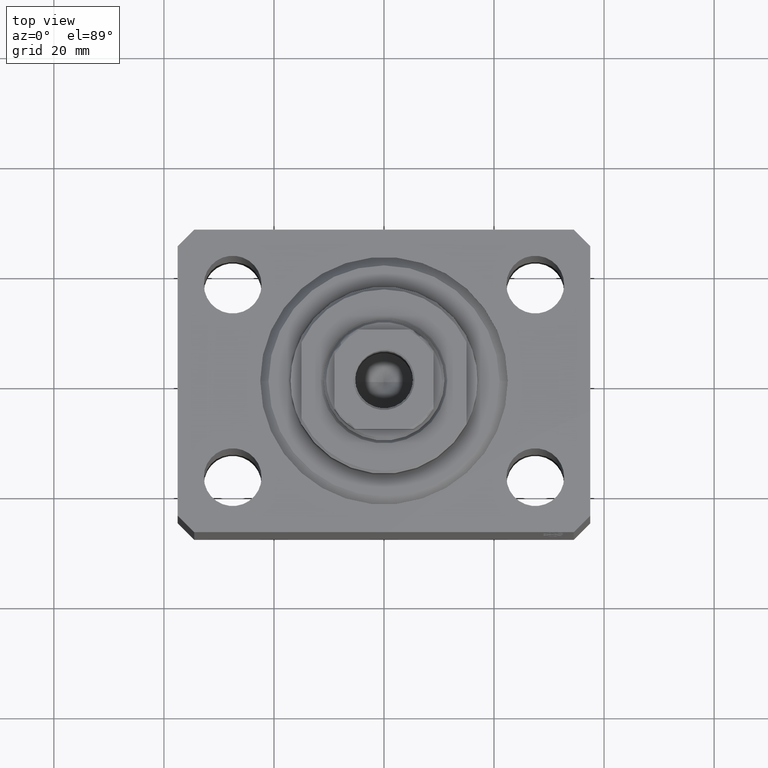
[diagram: clean part render]
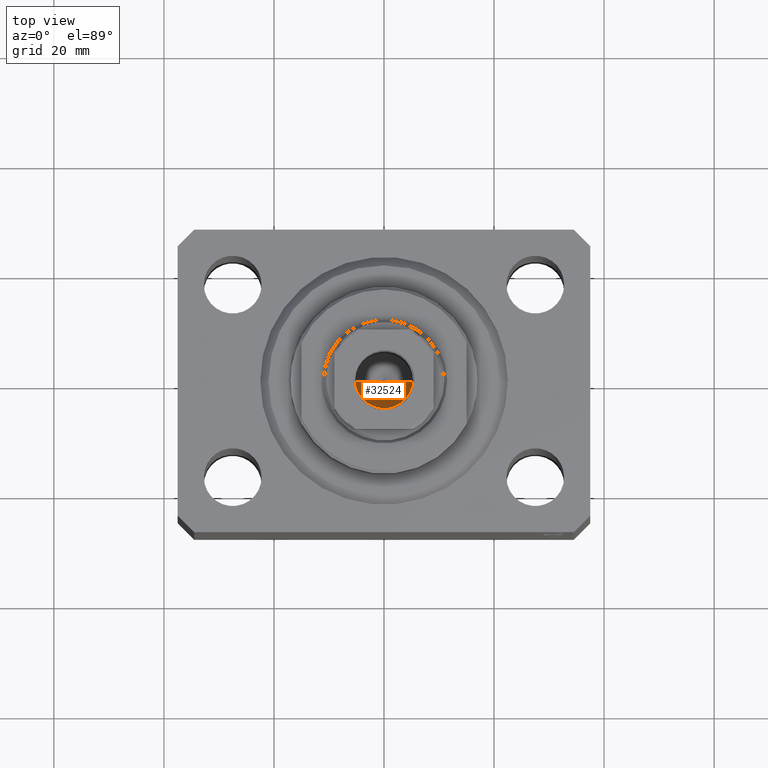
[diagram: same view with one face highlighted and labeled with its STEP entity id]
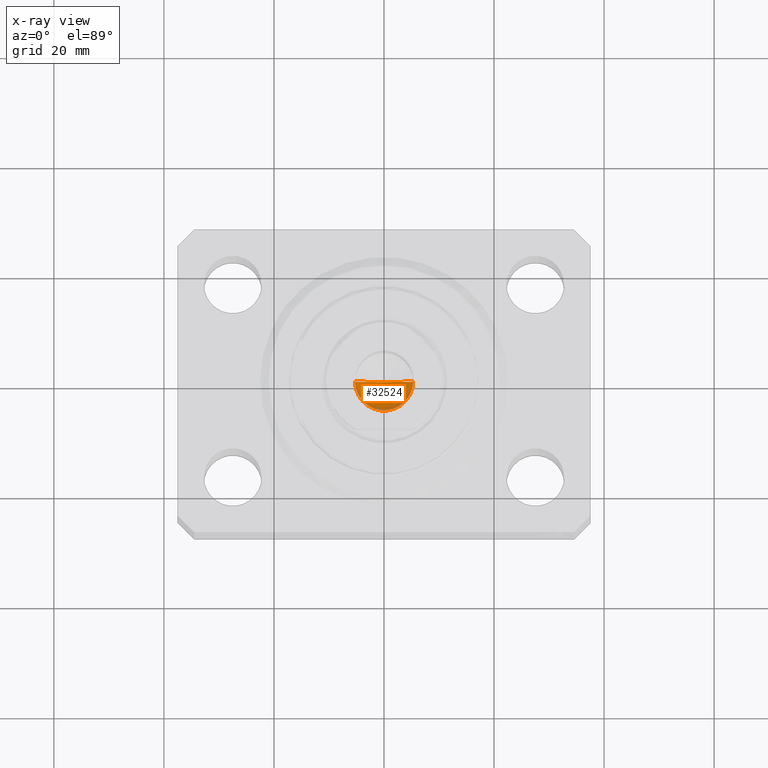
[diagram: x-ray of the same camera — body ghosted, the highlighted face saturated]
A machine part, top view. The second image highlights one B-rep face of the part: STEP entity #32524.
The next image is the same camera in x-ray: the body ghosted, the highlighted face saturated — about 11% of this face is hidden behind the body in this view.
In plain terms, the highlighted conical surface has half-angle 59 deg.
Its self-contained STEP definition (entity closure, byte-faithful):
#3667 = DIRECTION ( 'NONE',  ( -0.000000000000000000, -0.000000000000000000, 1.000000000000000000 ) ) ;
#6488 = ORIENTED_EDGE ( 'NONE', *, *, #36367, .T. ) ;
#6826 = CARTESIAN_POINT ( 'NONE',  ( 0.000000000000000000, 0.000000000000000000, 60.10000000000000853 ) ) ;
#6848 = CARTESIAN_POINT ( 'NONE',  ( 5.249999999999994671, 0.000000000000000000, 60.10000000000000853 ) ) ;
#9757 = CARTESIAN_POINT ( 'NONE',  ( 0.000000000000000000, 0.000000000000000000, 60.10000000000000853 ) ) ;
#12210 = ORIENTED_EDGE ( 'NONE', *, *, #25824, .F. ) ;
#12848 = CARTESIAN_POINT ( 'NONE',  ( -6.783656367213677939E-15, 0.000000000000000000, 56.94548175010531565 ) ) ;
#14835 = ORIENTED_EDGE ( 'NONE', *, *, #40795, .T. ) ;
#15372 = VERTEX_POINT ( 'NONE', #12848 ) ;
#16815 = LINE ( 'NONE', #6848, #27166 ) ;
#17491 = DIRECTION ( 'NONE',  ( 0.8571673007021118895, 0.000000000000000000, 0.5150380749100549327 ) ) ;
#17822 = CONICAL_SURFACE ( 'NONE', #43095, 5.249999999999994671, 1.029744258676653645 ) ;
#19338 = VERTEX_POINT ( 'NONE', #29627 ) ;
#22275 = CARTESIAN_POINT ( 'NONE',  ( -5.249999999999994671, 6.429395695523597250E-16, 60.10000000000000853 ) ) ;
#23564 = DIRECTION ( 'NONE',  ( 1.000000000000000000, 0.000000000000000000, 0.000000000000000000 ) ) ;
#25824 = EDGE_CURVE ( 'NONE', #15372, #19338, #16815, .T. ) ;
#27166 = VECTOR ( 'NONE', #17491, 1000.000000000000000 ) ;
#27215 = FACE_OUTER_BOUND ( 'NONE', #29699, .T. ) ;
#29627 = CARTESIAN_POINT ( 'NONE',  ( 5.249999999999994671, 0.000000000000000000, 60.10000000000000853 ) ) ;
#29699 = EDGE_LOOP ( 'NONE', ( #12210, #14835, #6488 ) ) ;
#32524 = ADVANCED_FACE ( 'NONE', ( #27215 ), #17822, .F. ) ;
#33515 = DIRECTION ( 'NONE',  ( -0.000000000000000000, -0.000000000000000000, 1.000000000000000000 ) ) ;
#34654 = DIRECTION ( 'NONE',  ( 1.000000000000000000, 0.000000000000000000, 0.000000000000000000 ) ) ;
#35260 = CIRCLE ( 'NONE', #44640, 5.249999999999994671 ) ;
#36089 = DIRECTION ( 'NONE',  ( -0.8571673007021118895, 1.049727191138618079E-16, 0.5150380749100549327 ) ) ;
#36367 = EDGE_CURVE ( 'NONE', #43009, #19338, #35260, .T. ) ;
#39695 = LINE ( 'NONE', #22275, #43290 ) ;
#40795 = EDGE_CURVE ( 'NONE', #15372, #43009, #39695, .T. ) ;
#42651 = CARTESIAN_POINT ( 'NONE',  ( -5.249999999999994671, 6.429395695523597250E-16, 60.10000000000000853 ) ) ;
#43009 = VERTEX_POINT ( 'NONE', #42651 ) ;
#43095 = AXIS2_PLACEMENT_3D ( 'NONE', #6826, #3667, #34654 ) ;
#43290 = VECTOR ( 'NONE', #36089, 1000.000000000000000 ) ;
#44640 = AXIS2_PLACEMENT_3D ( 'NONE', #9757, #33515, #23564 ) ;